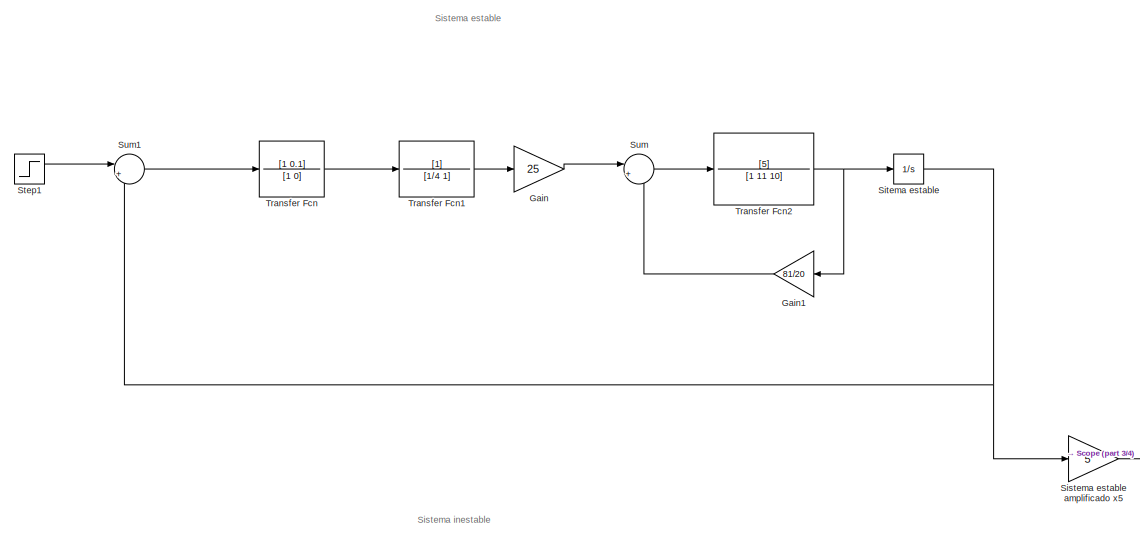
[diagram: root canvas - part 1/4, top center region]
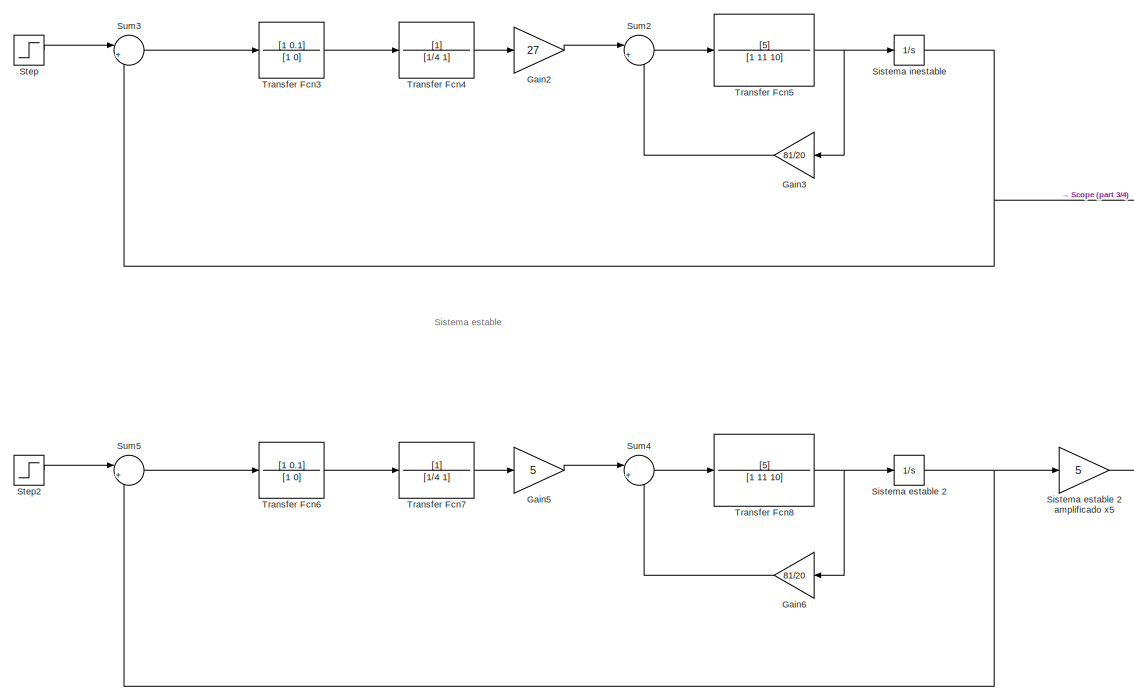
[diagram: root canvas - part 2/4, central region]
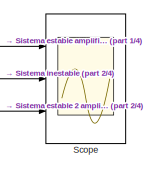
[diagram: root canvas - part 3/4, middle right region]
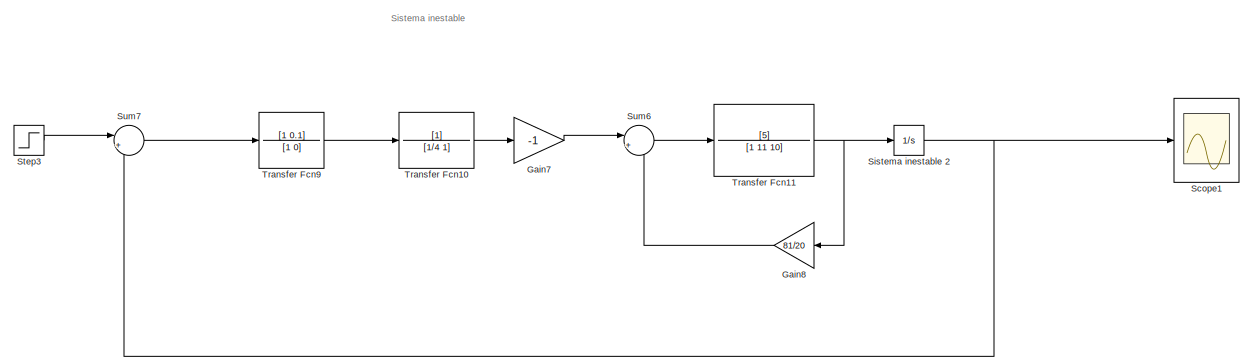
[diagram: root canvas - part 4/4, full width, bottom band]
MODEL slx_3ca8df847f51
KIND model
CONFIG AbsTol = auto
CONFIG EnableMultiTasking = off
CONFIG FixedStep = auto
CONFIG MaxStep = auto
CONFIG MinStep = auto
CONFIG RelTol = 1e-3
CONFIG SampleTimeConstraint = Unconstrained
CONFIG SolverName = VariableStepAuto
CONFIG StartTime = 0.0
CONFIG StopTime = 50
BLOCK [Gain] Gain
  Gain = 25
BLOCK [Gain] Gain1
  Gain = 81/20
BLOCK [Gain] Gain2
  Gain = 27
BLOCK [Gain] Gain3
  Gain = 81/20
BLOCK [Gain] Gain5
  Gain = 5
BLOCK [Gain] Gain6
  Gain = 81/20
BLOCK [Gain] Gain7
  Gain = -1
BLOCK [Gain] Gain8
  Gain = 81/20
BLOCK [Scope] Scope
  Floating = off
  NumInputPorts = 3
  Ports = [3]
  ScopeSpecificationString = Simulink.scopes.TimeScopeBlockCfg('CurrentConfiguration', extmgr.ConfigurationSet(extmgr.Configuration('Core','General UI',true),extmgr.Configuration('Core','Source UI',true),extmgr.Configuration('Sources','WiredSimulink',true),extmgr.Configuration('Visuals','Time Domain',true,'SerializedDisplays',{struct('MinYLimReal','-112.48064','MaxYLimReal','111.51683','YLabelReal','','MinYLimMag',' 0.00000',...<+1687ch>
BLOCK [Scope] Scope1
  Floating = off
  NumInputPorts = 1
  Ports = [1]
  ScopeSpecificationString = Simulink.scopes.TimeScopeBlockCfg('CurrentConfiguration', extmgr.ConfigurationSet(extmgr.Configuration('Core','General UI',true),extmgr.Configuration('Core','Source UI',true),extmgr.Configuration('Sources','WiredSimulink',true,'DataLoggingVariableName','ScopeData1'),extmgr.Configuration('Visuals','Time Domain',true,'SerializedDisplays',{struct('MinYLimReal','-1178397748.93056','MaxYLimReal','13093...<+1698ch>
BLOCK [Integrator] Sistema estable 2
  Ports = [1, 1]
BLOCK [Gain] Sistema estable 2 amplificado x5
  Gain = 5
BLOCK [Gain] Sistema estable amplificado x5
  Gain = 5
  NameLocation = top
BLOCK [Integrator] Sistema inestable
  Ports = [1, 1]
BLOCK [Integrator] Sistema inestable 2
  Ports = [1, 1]
BLOCK [Integrator] Sitema estable
  Ports = [1, 1]
BLOCK [Step] Step
  SampleTime = 0
  Time = 0
BLOCK [Step] Step1
  SampleTime = 0
  Time = 0
BLOCK [Step] Step2
  SampleTime = 0
BLOCK [Step] Step3
  SampleTime = 0
BLOCK [Sum] Sum
  Inputs = |+-
  Ports = [2, 1]
BLOCK [Sum] Sum1
  Inputs = |+-
  Ports = [2, 1]
BLOCK [Sum] Sum2
  Inputs = |+-
  Ports = [2, 1]
BLOCK [Sum] Sum3
  Inputs = |+-
  Ports = [2, 1]
BLOCK [Sum] Sum4
  Inputs = |+-
  Ports = [2, 1]
BLOCK [Sum] Sum5
  Inputs = |+-
  Ports = [2, 1]
BLOCK [Sum] Sum6
  Inputs = |+-
  Ports = [2, 1]
BLOCK [Sum] Sum7
  Inputs = |+-
  Ports = [2, 1]
BLOCK [TransferFcn] Transfer Fcn
  Denominator = [1 0]
  Numerator = [1 0.1]
BLOCK [TransferFcn] Transfer Fcn1
  Denominator = [1/4 1]
BLOCK [TransferFcn] Transfer Fcn10
  Denominator = [1/4 1]
BLOCK [TransferFcn] Transfer Fcn11
  Denominator = [1 11 10]
  Numerator = [5]
BLOCK [TransferFcn] Transfer Fcn2
  Denominator = [1 11 10]
  Numerator = [5]
BLOCK [TransferFcn] Transfer Fcn3
  Denominator = [1 0]
  Numerator = [1 0.1]
BLOCK [TransferFcn] Transfer Fcn4
  Denominator = [1/4 1]
BLOCK [TransferFcn] Transfer Fcn5
  Denominator = [1 11 10]
  Numerator = [5]
BLOCK [TransferFcn] Transfer Fcn6
  Denominator = [1 0]
  Numerator = [1 0.1]
BLOCK [TransferFcn] Transfer Fcn7
  Denominator = [1/4 1]
BLOCK [TransferFcn] Transfer Fcn8
  Denominator = [1 11 10]
  Numerator = [5]
BLOCK [TransferFcn] Transfer Fcn9
  Denominator = [1 0]
  Numerator = [1 0.1]
ANNOTATION (root): Sistema estable
ANNOTATION (root): Sistema inestable
LINE Gain1:1 -> Sum:2
LINE Gain2:1 -> Sum2:1
LINE Gain3:1 -> Sum2:2
LINE Gain5:1 -> Sum4:1
LINE Gain6:1 -> Sum4:2
LINE Gain7:1 -> Sum6:1
LINE Gain8:1 -> Sum6:2
LINE Gain:1 -> Sum:1
LINE Sistema estable 2 amplificado x5:1 -> Scope:3
NET Sistema estable 2:1 -> Sistema estable 2 amplificado x5:1, Sum5:2
LINE Sistema estable amplificado x5:1 -> Scope:1
NET Sistema inestable 2:1 -> Scope1:1, Sum7:2
NET Sistema inestable:1 -> Scope:2, Sum3:2
NET Sitema estable:1 -> Sistema estable amplificado x5:1, Sum1:2
LINE Step1:1 -> Sum1:1
LINE Step2:1 -> Sum5:1
LINE Step3:1 -> Sum7:1
LINE Step:1 -> Sum3:1
LINE Sum1:1 -> Transfer Fcn:1
LINE Sum2:1 -> Transfer Fcn5:1
LINE Sum3:1 -> Transfer Fcn3:1
LINE Sum4:1 -> Transfer Fcn8:1
LINE Sum5:1 -> Transfer Fcn6:1
LINE Sum6:1 -> Transfer Fcn11:1
LINE Sum7:1 -> Transfer Fcn9:1
LINE Sum:1 -> Transfer Fcn2:1
LINE Transfer Fcn10:1 -> Gain7:1
NET Transfer Fcn11:1 -> Gain8:1, Sistema inestable 2:1
LINE Transfer Fcn1:1 -> Gain:1
NET Transfer Fcn2:1 -> Gain1:1, Sitema estable:1
LINE Transfer Fcn3:1 -> Transfer Fcn4:1
LINE Transfer Fcn4:1 -> Gain2:1
NET Transfer Fcn5:1 -> Gain3:1, Sistema inestable:1
LINE Transfer Fcn6:1 -> Transfer Fcn7:1
LINE Transfer Fcn7:1 -> Gain5:1
NET Transfer Fcn8:1 -> Gain6:1, Sistema estable 2:1
LINE Transfer Fcn9:1 -> Transfer Fcn10:1
LINE Transfer Fcn:1 -> Transfer Fcn1:1
note: NET lines group one-source signal fan-out (src -> all destinations, sorted); 1:1 wires keep LINE
